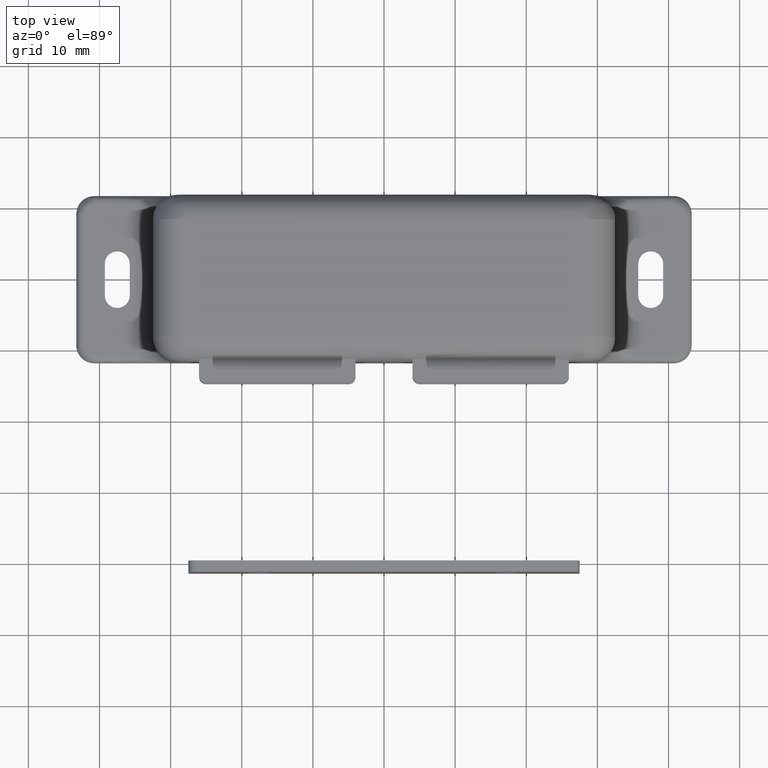
[diagram: clean part render]
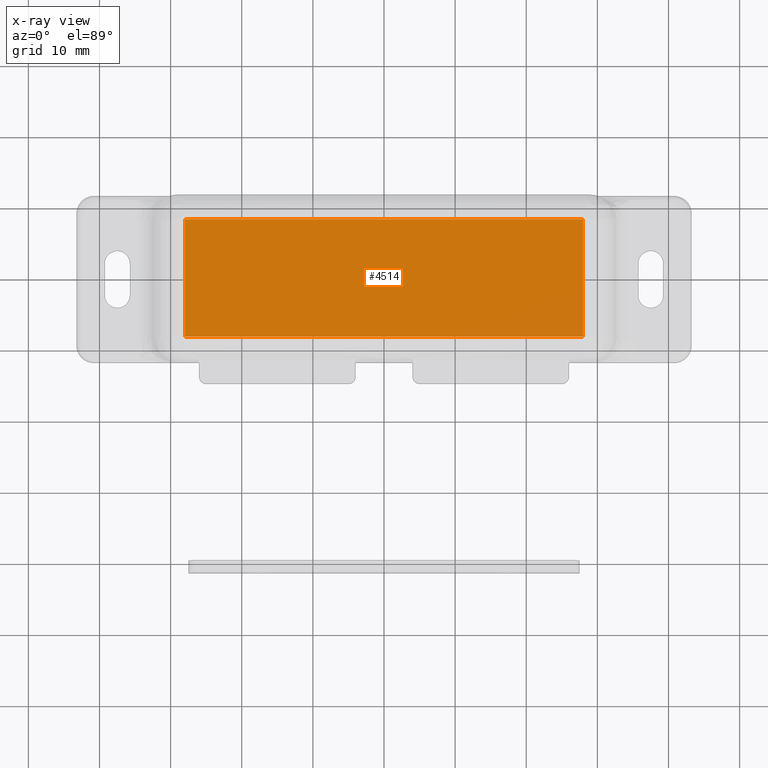
[diagram: x-ray — body ghosted, one internal face saturated and labeled with its STEP entity id]
A machine part, top view, then the same camera in x-ray: the body is ghosted and one INTERNAL B-rep face — a face not visible from any outside direction — is saturated and labeled: STEP entity #4514.
In plain terms, the highlighted face is a freeform B-spline surface patch.
Its self-contained STEP definition (entity closure, byte-faithful):
#3931=CARTESIAN_POINT('',(-28.000003000000000,8.250000000000110,15.199999999999999));
#3932=VERTEX_POINT('',#3931);
#4008=CARTESIAN_POINT('',(-28.000003000000000,-8.249999999999870,15.199999999999999));
#4009=VERTEX_POINT('',#4008);
#4029=CARTESIAN_POINT('',(-28.000003000000000,8.250000000000110,15.199999999999999));
#4030=CARTESIAN_POINT('',(-28.000003000000000,-8.249999999999870,15.199999999999999));
#4031=QUASI_UNIFORM_CURVE('',1,(#4029,#4030),.UNSPECIFIED.,.F.,.U.);
#4032=EDGE_CURVE('',#3932,#4009,#4031,.T.);
#4152=CARTESIAN_POINT('',(28.0,-8.249999999999870,15.199999999999999));
#4153=VERTEX_POINT('',#4152);
#4229=CARTESIAN_POINT('',(28.0,8.250000000000091,15.199999999999999));
#4230=VERTEX_POINT('',#4229);
#4250=CARTESIAN_POINT('',(28.0,-8.249999999999870,15.199999999999999));
#4251=CARTESIAN_POINT('',(28.0,8.250000000000091,15.199999999999999));
#4252=QUASI_UNIFORM_CURVE('',1,(#4250,#4251),.UNSPECIFIED.,.F.,.U.);
#4253=EDGE_CURVE('',#4153,#4230,#4252,.T.);
#4358=CARTESIAN_POINT('',(28.0,8.250000000000091,15.199999999999999));
#4359=CARTESIAN_POINT('',(-28.000003000000000,8.250000000000110,15.199999999999999));
#4360=QUASI_UNIFORM_CURVE('',1,(#4358,#4359),.UNSPECIFIED.,.F.,.U.);
#4361=EDGE_CURVE('',#4230,#3932,#4360,.T.);
#4499=CARTESIAN_POINT('',(30.797200041311140,-9.074174968019669,15.199999999999999));
#4500=CARTESIAN_POINT('',(-30.797204543348251,-9.074174968019669,15.199999999999999));
#4501=CARTESIAN_POINT('',(30.797200041311140,9.074175410584394,15.199999999999999));
#4502=CARTESIAN_POINT('',(-30.797204543348251,9.074175410584394,15.199999999999999));
#4503=B_SPLINE_SURFACE_WITH_KNOTS('',1,1,((#4499,#4501),(#4500,#4502)),.UNSPECIFIED.,.F.,.F.,.U.,(2,2),(2,2),(0.0,61.594404584659387),(0.0,18.148350378604061),.UNSPECIFIED.);
#4504=ORIENTED_EDGE('',*,*,#4361,.F.);
#4505=ORIENTED_EDGE('',*,*,#4253,.F.);
#4506=CARTESIAN_POINT('',(-28.000003000000000,-8.249999999999870,15.199999999999999));
#4507=CARTESIAN_POINT('',(28.0,-8.249999999999870,15.199999999999999));
#4508=QUASI_UNIFORM_CURVE('',1,(#4506,#4507),.UNSPECIFIED.,.F.,.U.);
#4509=EDGE_CURVE('',#4009,#4153,#4508,.T.);
#4510=ORIENTED_EDGE('',*,*,#4509,.F.);
#4511=ORIENTED_EDGE('',*,*,#4032,.F.);
#4512=EDGE_LOOP('',(#4504,#4505,#4510,#4511));
#4513=FACE_OUTER_BOUND('',#4512,.T.);
#4514=ADVANCED_FACE('',(#4513),#4503,.T.);